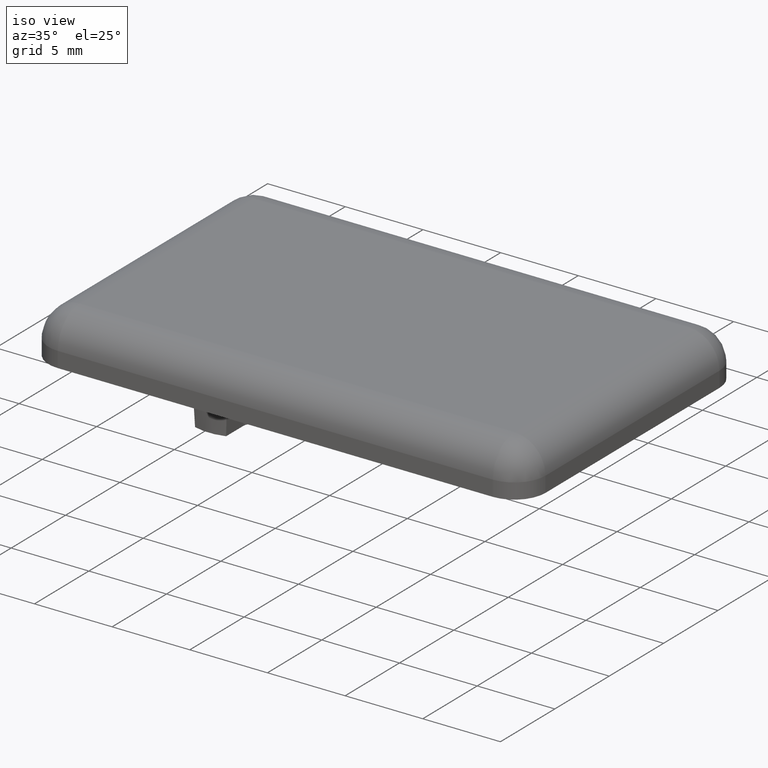
[diagram: clean part render]
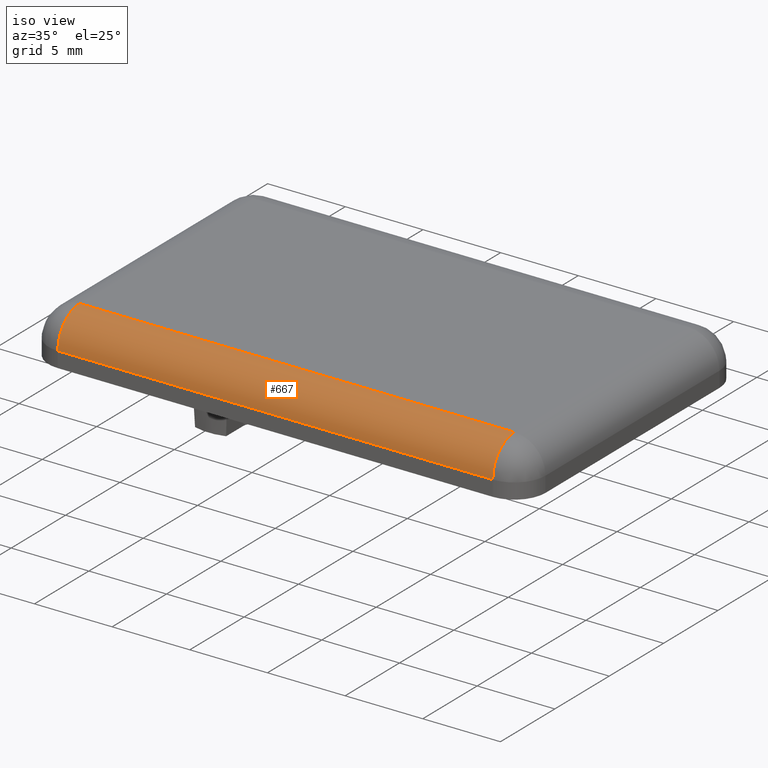
[diagram: same view with one face highlighted and labeled with its STEP entity id]
A machine part, iso view. The second image highlights one B-rep face of the part: STEP entity #667.
In plain terms, the highlighted cylindrical surface (partial cylindrical patch) has radius 2 mm, axis along (1, 0, 0).
Its self-contained STEP definition (entity closure, byte-faithful):
#87=FACE_OUTER_BOUND('',#127,.T.);
#127=EDGE_LOOP('',(#569,#570,#571,#572));
#147=LINE('',#992,#199);
#182=LINE('',#1158,#234);
#199=VECTOR('',#785,28.);
#234=VECTOR('',#938,28.);
#269=CIRCLE('',#733,2.);
#275=CIRCLE('',#742,2.);
#287=VERTEX_POINT('',#989);
#288=VERTEX_POINT('',#991);
#329=VERTEX_POINT('',#1132);
#334=VERTEX_POINT('',#1148);
#351=EDGE_CURVE('',#288,#287,#147,.T.);
#413=EDGE_CURVE('',#329,#288,#269,.F.);
#422=EDGE_CURVE('',#287,#334,#275,.F.);
#426=EDGE_CURVE('',#334,#329,#182,.T.);
#569=ORIENTED_EDGE('',*,*,#413,.T.);
#570=ORIENTED_EDGE('',*,*,#351,.T.);
#571=ORIENTED_EDGE('',*,*,#422,.T.);
#572=ORIENTED_EDGE('',*,*,#426,.T.);
#632=CYLINDRICAL_SURFACE('',#745,2.);
#667=ADVANCED_FACE('',(#87),#632,.T.);
#733=AXIS2_PLACEMENT_3D('',#1133,#907,#908);
#742=AXIS2_PLACEMENT_3D('',#1150,#928,#929);
#745=AXIS2_PLACEMENT_3D('',#1157,#936,#937);
#785=DIRECTION('',(-1.,-3.46944695195361E-17,0.));
#907=DIRECTION('center_axis',(1.,0.,0.));
#908=DIRECTION('ref_axis',(0.,-1.,0.));
#928=DIRECTION('center_axis',(-1.,0.,0.));
#929=DIRECTION('ref_axis',(0.,0.,1.));
#936=DIRECTION('center_axis',(1.,3.46944695195361E-17,0.));
#937=DIRECTION('ref_axis',(0.,-0.707106781186547,0.707106781186548));
#938=DIRECTION('',(1.,3.46944695195361E-17,0.));
#989=CARTESIAN_POINT('',(-14.,-7.99999999999996,3.));
#991=CARTESIAN_POINT('',(14.,-7.99999999999996,3.));
#992=CARTESIAN_POINT('',(-8.,-7.99999999999996,3.));
#1132=CARTESIAN_POINT('',(14.,-9.99999999999996,1.));
#1133=CARTESIAN_POINT('Origin',(14.,-7.99999999999996,1.));
#1148=CARTESIAN_POINT('',(-14.,-9.99999999999996,1.));
#1150=CARTESIAN_POINT('Origin',(-14.,-7.99999999999996,1.));
#1157=CARTESIAN_POINT('Origin',(-8.,-7.99999999999996,1.));
#1158=CARTESIAN_POINT('',(-8.,-9.99999999999996,1.));